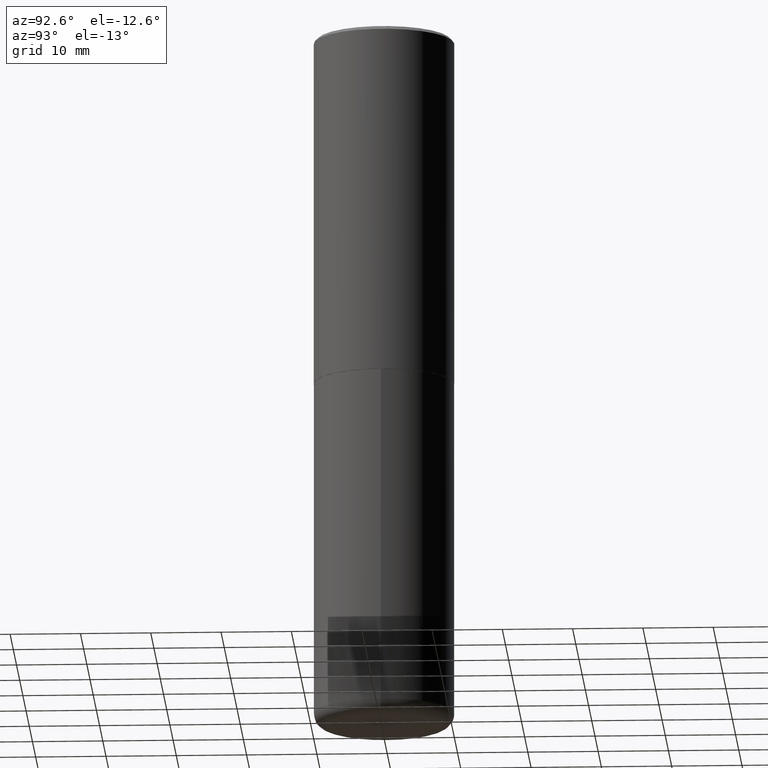
[diagram: clean part render]
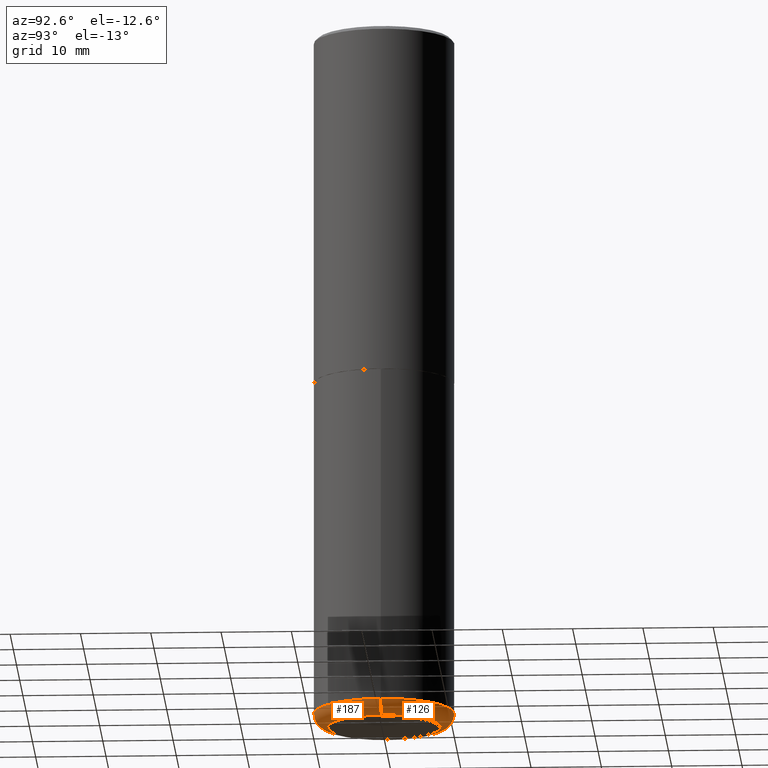
[diagram: same view with one multi-face feature highlighted, each face labeled with its STEP entity id]
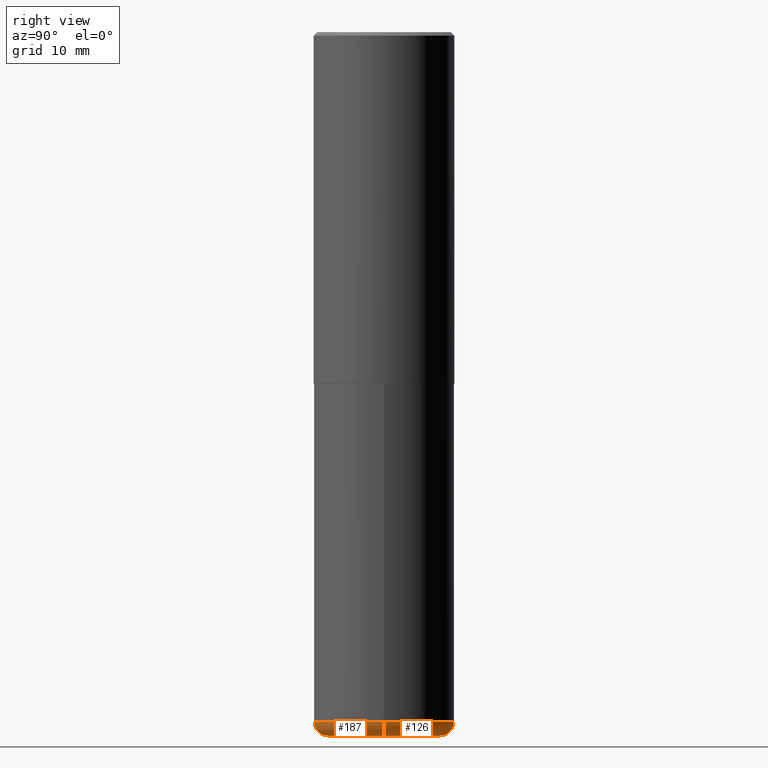
[diagram: same view with one multi-face feature highlighted, each face labeled with its STEP entity id]
A machine part, auxiliary view. The highlighted faces form ONE feature: a constant-radius fillet chain: 2 tangent blend faces with common blend radius 1.999 mm. The faces share edges in the B-rep.
A second angle (right view) of the same feature is appended — it is thin or edge-on in the first view.
Their STEP definitions:
[1] entity #126 (Torus):
#1 = AXIS2_PLACEMENT_3D ( 'NONE', #408, #345, #49 ) ;
#6 = VERTEX_POINT ( 'NONE', #68 ) ;
#9 = DIRECTION ( 'NONE',  ( -2.445468806185136597E-29, 3.491481338843145583E-15, 1.000000000000000000 ) ) ;
#18 = CARTESIAN_POINT ( 'NONE',  ( 0.3937000000000002164, -1.622037485586359329E-14, -3.858300000000000285 ) ) ;
#28 = DIRECTION ( 'NONE',  ( -2.445468806185136597E-29, 3.491481338843145583E-15, 1.000000000000000000 ) ) ;
#41 = TOROIDAL_SURFACE ( 'NONE', #211, 0.3150000000000000577, 0.07870000000000024198 ) ;
#49 = DIRECTION ( 'NONE',  ( 1.000000000000000000, -6.982962677686273810E-15, 0.000000000000000000 ) ) ;
#59 = CARTESIAN_POINT ( 'NONE',  ( -0.3150000000000000577, -1.123297283201419171E-14, -3.858300000000000285 ) ) ;
#60 = AXIS2_PLACEMENT_3D ( 'NONE', #310, #377, #213 ) ;
#68 = CARTESIAN_POINT ( 'NONE',  ( -0.3150000000000000577, -1.109076405617607056E-14, -3.937000000000000721 ) ) ;
#76 = EDGE_CURVE ( 'NONE', #6, #324, #392, .T. ) ;
#87 = CIRCLE ( 'NONE', #60, 0.3150000000000000577 ) ;
#91 = DIRECTION ( 'NONE',  ( -1.000000000000000000, 7.105427357600995548E-15, 0.000000000000000000 ) ) ;
#97 = ORIENTED_EDGE ( 'NONE', *, *, #227, .T. ) ;
#103 = CIRCLE ( 'NONE', #1, 0.07870000000000024198 ) ;
#104 = CARTESIAN_POINT ( 'NONE',  ( 9.435352294904112142E-29, -1.347118244965850850E-14, -3.858300000000000285 ) ) ;
#126 = ADVANCED_FACE ( 'NONE', ( #147 ), #41, .T. ) ;
#147 = FACE_OUTER_BOUND ( 'NONE', #293, .T. ) ;
#171 = AXIS2_PLACEMENT_3D ( 'NONE', #59, #357, #91 ) ;
#177 = ORIENTED_EDGE ( 'NONE', *, *, #373, .F. ) ;
#179 = VERTEX_POINT ( 'NONE', #401 ) ;
#188 = AXIS2_PLACEMENT_3D ( 'NONE', #104, #9, #242 ) ;
#191 = DIRECTION ( 'NONE',  ( 1.000000000000000000, -6.982962677686268288E-15, 4.883557194083113462E-29 ) ) ;
#211 = AXIS2_PLACEMENT_3D ( 'NONE', #414, #28, #191 ) ;
#213 = DIRECTION ( 'NONE',  ( 1.000000000000000000, -6.982962677686267499E-15, 0.000000000000000000 ) ) ;
#227 = EDGE_CURVE ( 'NONE', #179, #6, #87, .T. ) ;
#238 = VERTEX_POINT ( 'NONE', #18 ) ;
#241 = CIRCLE ( 'NONE', #188, 0.3937000000000001054 ) ;
#242 = DIRECTION ( 'NONE',  ( 1.000000000000000000, -6.982962677686266711E-15, 0.000000000000000000 ) ) ;
#293 = EDGE_LOOP ( 'NONE', ( #97, #383, #177, #412 ) ) ;
#310 = CARTESIAN_POINT ( 'NONE',  ( 9.627810689950884790E-29, -1.374596203102546657E-14, -3.937000000000000721 ) ) ;
#318 = EDGE_CURVE ( 'NONE', #179, #238, #103, .T. ) ;
#324 = VERTEX_POINT ( 'NONE', #369 ) ;
#345 = DIRECTION ( 'NONE',  ( -6.982962677686266711E-15, -1.000000000000000000, 3.491481338843145583E-15 ) ) ;
#357 = DIRECTION ( 'NONE',  ( 7.105427357601001859E-15, 1.000000000000000000, -3.491481338843145583E-15 ) ) ;
#369 = CARTESIAN_POINT ( 'NONE',  ( -0.3937000000000002164, -1.067377569897099292E-14, -3.858300000000000285 ) ) ;
#373 = EDGE_CURVE ( 'NONE', #238, #324, #241, .T. ) ;
#377 = DIRECTION ( 'NONE',  ( -2.445468806185136597E-29, 3.491481338843145583E-15, 1.000000000000000000 ) ) ;
#383 = ORIENTED_EDGE ( 'NONE', *, *, #76, .T. ) ;
#392 = CIRCLE ( 'NONE', #171, 0.07870000000000024198 ) ;
#401 = CARTESIAN_POINT ( 'NONE',  ( 0.3150000000000000577, -1.594559527449663995E-14, -3.937000000000000721 ) ) ;
#408 = CARTESIAN_POINT ( 'NONE',  ( 0.3150000000000000577, -1.567081569312968346E-14, -3.858300000000000285 ) ) ;
#412 = ORIENTED_EDGE ( 'NONE', *, *, #318, .F. ) ;
#414 = CARTESIAN_POINT ( 'NONE',  ( 9.435352294904112142E-29, -1.347118244965850850E-14, -3.858300000000000285 ) ) ;
[2] entity #187 (Torus):
#1 = AXIS2_PLACEMENT_3D ( 'NONE', #408, #345, #49 ) ;
#6 = VERTEX_POINT ( 'NONE', #68 ) ;
#8 = ORIENTED_EDGE ( 'NONE', *, *, #86, .F. ) ;
#18 = CARTESIAN_POINT ( 'NONE',  ( 0.3937000000000002164, -1.622037485586359329E-14, -3.858300000000000285 ) ) ;
#49 = DIRECTION ( 'NONE',  ( 1.000000000000000000, -6.982962677686273810E-15, 0.000000000000000000 ) ) ;
#59 = CARTESIAN_POINT ( 'NONE',  ( -0.3150000000000000577, -1.123297283201419171E-14, -3.858300000000000285 ) ) ;
#68 = CARTESIAN_POINT ( 'NONE',  ( -0.3150000000000000577, -1.109076405617607056E-14, -3.937000000000000721 ) ) ;
#76 = EDGE_CURVE ( 'NONE', #6, #324, #392, .T. ) ;
#81 = TOROIDAL_SURFACE ( 'NONE', #330, 0.3150000000000000577, 0.07870000000000024198 ) ;
#86 = EDGE_CURVE ( 'NONE', #324, #238, #405, .T. ) ;
#91 = DIRECTION ( 'NONE',  ( -1.000000000000000000, 7.105427357600995548E-15, 0.000000000000000000 ) ) ;
#103 = CIRCLE ( 'NONE', #1, 0.07870000000000024198 ) ;
#113 = FACE_OUTER_BOUND ( 'NONE', #168, .T. ) ;
#141 = CIRCLE ( 'NONE', #304, 0.3150000000000000577 ) ;
#152 = CARTESIAN_POINT ( 'NONE',  ( 9.435352294904112142E-29, -1.347118244965850850E-14, -3.858300000000000285 ) ) ;
#168 = EDGE_LOOP ( 'NONE', ( #259, #411, #399, #8 ) ) ;
#171 = AXIS2_PLACEMENT_3D ( 'NONE', #59, #357, #91 ) ;
#179 = VERTEX_POINT ( 'NONE', #401 ) ;
#187 = ADVANCED_FACE ( 'NONE', ( #113 ), #81, .T. ) ;
#196 = DIRECTION ( 'NONE',  ( 1.000000000000000000, -6.982962677686266711E-15, 0.000000000000000000 ) ) ;
#238 = VERTEX_POINT ( 'NONE', #18 ) ;
#240 = DIRECTION ( 'NONE',  ( 1.000000000000000000, -6.982962677686267499E-15, 0.000000000000000000 ) ) ;
#252 = DIRECTION ( 'NONE',  ( -2.445468806185136597E-29, 3.491481338843145583E-15, 1.000000000000000000 ) ) ;
#254 = DIRECTION ( 'NONE',  ( 1.000000000000000000, -6.982962677686268288E-15, 4.883557194083113462E-29 ) ) ;
#259 = ORIENTED_EDGE ( 'NONE', *, *, #76, .F. ) ;
#280 = AXIS2_PLACEMENT_3D ( 'NONE', #152, #397, #196 ) ;
#289 = CARTESIAN_POINT ( 'NONE',  ( 9.435352294904112142E-29, -1.347118244965850850E-14, -3.858300000000000285 ) ) ;
#290 = EDGE_CURVE ( 'NONE', #6, #179, #141, .T. ) ;
#304 = AXIS2_PLACEMENT_3D ( 'NONE', #338, #252, #240 ) ;
#318 = EDGE_CURVE ( 'NONE', #179, #238, #103, .T. ) ;
#324 = VERTEX_POINT ( 'NONE', #369 ) ;
#330 = AXIS2_PLACEMENT_3D ( 'NONE', #289, #385, #254 ) ;
#338 = CARTESIAN_POINT ( 'NONE',  ( 9.627810689950884790E-29, -1.374596203102546657E-14, -3.937000000000000721 ) ) ;
#345 = DIRECTION ( 'NONE',  ( -6.982962677686266711E-15, -1.000000000000000000, 3.491481338843145583E-15 ) ) ;
#357 = DIRECTION ( 'NONE',  ( 7.105427357601001859E-15, 1.000000000000000000, -3.491481338843145583E-15 ) ) ;
#369 = CARTESIAN_POINT ( 'NONE',  ( -0.3937000000000002164, -1.067377569897099292E-14, -3.858300000000000285 ) ) ;
#385 = DIRECTION ( 'NONE',  ( -2.445468806185136597E-29, 3.491481338843145583E-15, 1.000000000000000000 ) ) ;
#392 = CIRCLE ( 'NONE', #171, 0.07870000000000024198 ) ;
#397 = DIRECTION ( 'NONE',  ( -2.445468806185136597E-29, 3.491481338843145583E-15, 1.000000000000000000 ) ) ;
#399 = ORIENTED_EDGE ( 'NONE', *, *, #318, .T. ) ;
#401 = CARTESIAN_POINT ( 'NONE',  ( 0.3150000000000000577, -1.594559527449663995E-14, -3.937000000000000721 ) ) ;
#405 = CIRCLE ( 'NONE', #280, 0.3937000000000001054 ) ;
#408 = CARTESIAN_POINT ( 'NONE',  ( 0.3150000000000000577, -1.567081569312968346E-14, -3.858300000000000285 ) ) ;
#411 = ORIENTED_EDGE ( 'NONE', *, *, #290, .T. ) ;